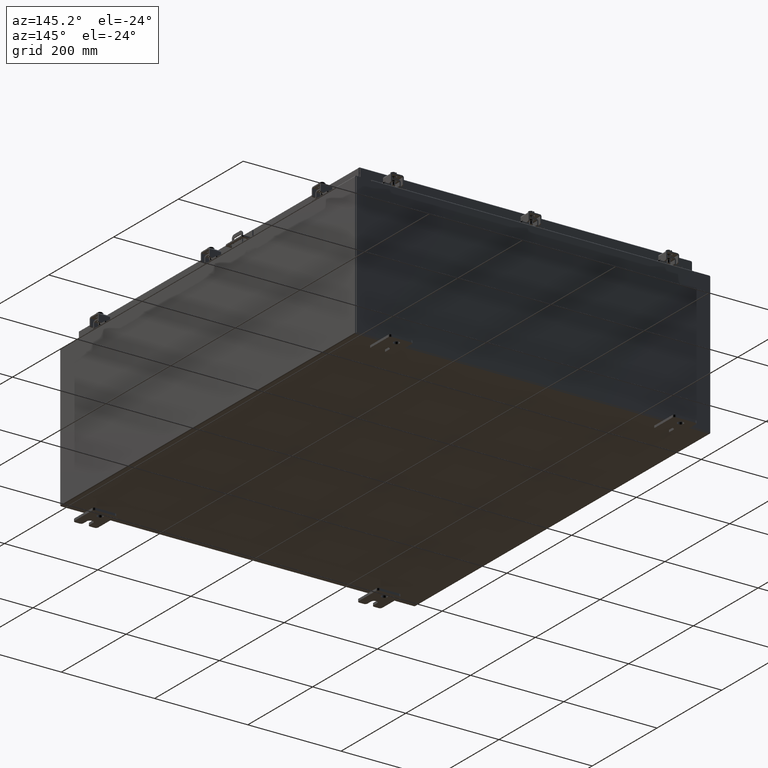
[diagram: clean part render]
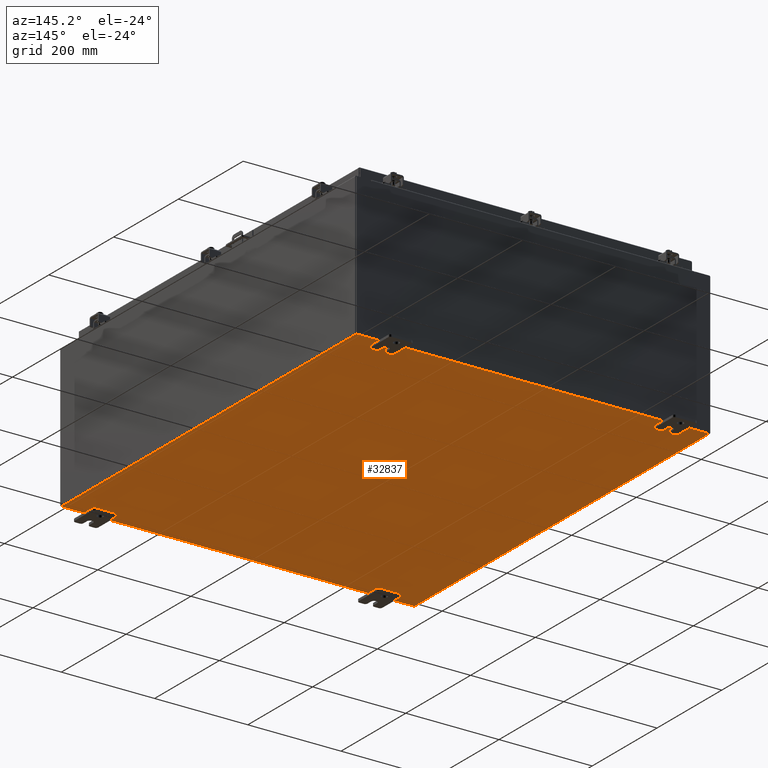
[diagram: same view with one face highlighted and labeled with its STEP entity id]
A machine part, auxiliary view. The second image highlights one B-rep face of the part: STEP entity #32837.
In plain terms, the highlighted planar face has unit normal (0, 0, -1).
Its self-contained STEP definition (entity closure, byte-faithful):
#1075 = VECTOR ( 'NONE', #11570, 39.37007874015748100 ) ;
#1381 = DIRECTION ( 'NONE',  ( -0.0000000000000000000, 1.000000000000000000, -0.0000000000000000000 ) ) ;
#2077 = VERTEX_POINT ( 'NONE', #14365 ) ;
#2639 = CARTESIAN_POINT ( 'NONE',  ( -14.91230000000000200, -17.92530000000000000, -0.07469999999999994700 ) ) ;
#6394 = EDGE_CURVE ( 'NONE', #40088, #19468, #14499, .T. ) ;
#7274 = CARTESIAN_POINT ( 'NONE',  ( -15.00000000000000400, -17.92530000000000000, -0.07470000000000000300 ) ) ;
#8579 = VERTEX_POINT ( 'NONE', #21028 ) ;
#9298 = ORIENTED_EDGE ( 'NONE', *, *, #33948, .F. ) ;
#10839 = CARTESIAN_POINT ( 'NONE',  ( 14.91229999999999800, 17.92530000000000000, -0.07470000000000251400 ) ) ;
#11030 = DIRECTION ( 'NONE',  ( -0.0000000000000000000, -1.000000000000000000, 8.208677865577646300E-017 ) ) ;
#11570 = DIRECTION ( 'NONE',  ( 1.000000000000000000, 0.0000000000000000000, 0.0000000000000000000 ) ) ;
#12430 = PLANE ( 'NONE',  #39158 ) ;
#14365 = CARTESIAN_POINT ( 'NONE',  ( 14.91229999999999800, -17.92530000000000000, -0.07470000000000000300 ) ) ;
#14499 = LINE ( 'NONE', #2639, #21173 ) ;
#14798 = CARTESIAN_POINT ( 'NONE',  ( -15.00000000000000400, 17.92530000000000000, -0.07470000000000000300 ) ) ;
#14830 = VECTOR ( 'NONE', #11030, 39.37007874015748100 ) ;
#16136 = EDGE_CURVE ( 'NONE', #8579, #2077, #24651, .T. ) ;
#16429 = EDGE_LOOP ( 'NONE', ( #25328, #32648, #9298, #20121 ) ) ;
#17503 = EDGE_CURVE ( 'NONE', #40088, #2077, #18796, .T. ) ;
#18077 = DIRECTION ( 'NONE',  ( -1.000000000000000000, -0.0000000000000000000, -0.0000000000000000000 ) ) ;
#18796 = LINE ( 'NONE', #7274, #1075 ) ;
#19007 = CARTESIAN_POINT ( 'NONE',  ( 0.0000000000000000000, 0.0000000000000000000, -0.07470000000000000300 ) ) ;
#19398 = VECTOR ( 'NONE', #18077, 39.37007874015748100 ) ;
#19468 = VERTEX_POINT ( 'NONE', #24590 ) ;
#20121 = ORIENTED_EDGE ( 'NONE', *, *, #16136, .T. ) ;
#21028 = CARTESIAN_POINT ( 'NONE',  ( 14.91229999999999800, 17.92530000000000000, -0.07470000000000251400 ) ) ;
#21173 = VECTOR ( 'NONE', #1381, 39.37007874015748100 ) ;
#21500 = LINE ( 'NONE', #14798, #19398 ) ;
#22362 = DIRECTION ( 'NONE',  ( -1.000000000000000000, 0.0000000000000000000, -0.0000000000000000000 ) ) ;
#24590 = CARTESIAN_POINT ( 'NONE',  ( -14.91230000000000200, 17.92530000000000000, -0.07470000000000000300 ) ) ;
#24651 = LINE ( 'NONE', #10839, #14830 ) ;
#25328 = ORIENTED_EDGE ( 'NONE', *, *, #17503, .F. ) ;
#30559 = CARTESIAN_POINT ( 'NONE',  ( -14.91230000000000200, -17.92530000000000000, -0.07469999999999994700 ) ) ;
#32648 = ORIENTED_EDGE ( 'NONE', *, *, #6394, .T. ) ;
#32837 = ADVANCED_FACE ( 'NONE', ( #38362 ), #12430, .T. ) ;
#33948 = EDGE_CURVE ( 'NONE', #8579, #19468, #21500, .T. ) ;
#38362 = FACE_OUTER_BOUND ( 'NONE', #16429, .T. ) ;
#39158 = AXIS2_PLACEMENT_3D ( 'NONE', #19007, #42392, #22362 ) ;
#40088 = VERTEX_POINT ( 'NONE', #30559 ) ;
#42392 = DIRECTION ( 'NONE',  ( 0.0000000000000000000, 0.0000000000000000000, -1.000000000000000000 ) ) ;